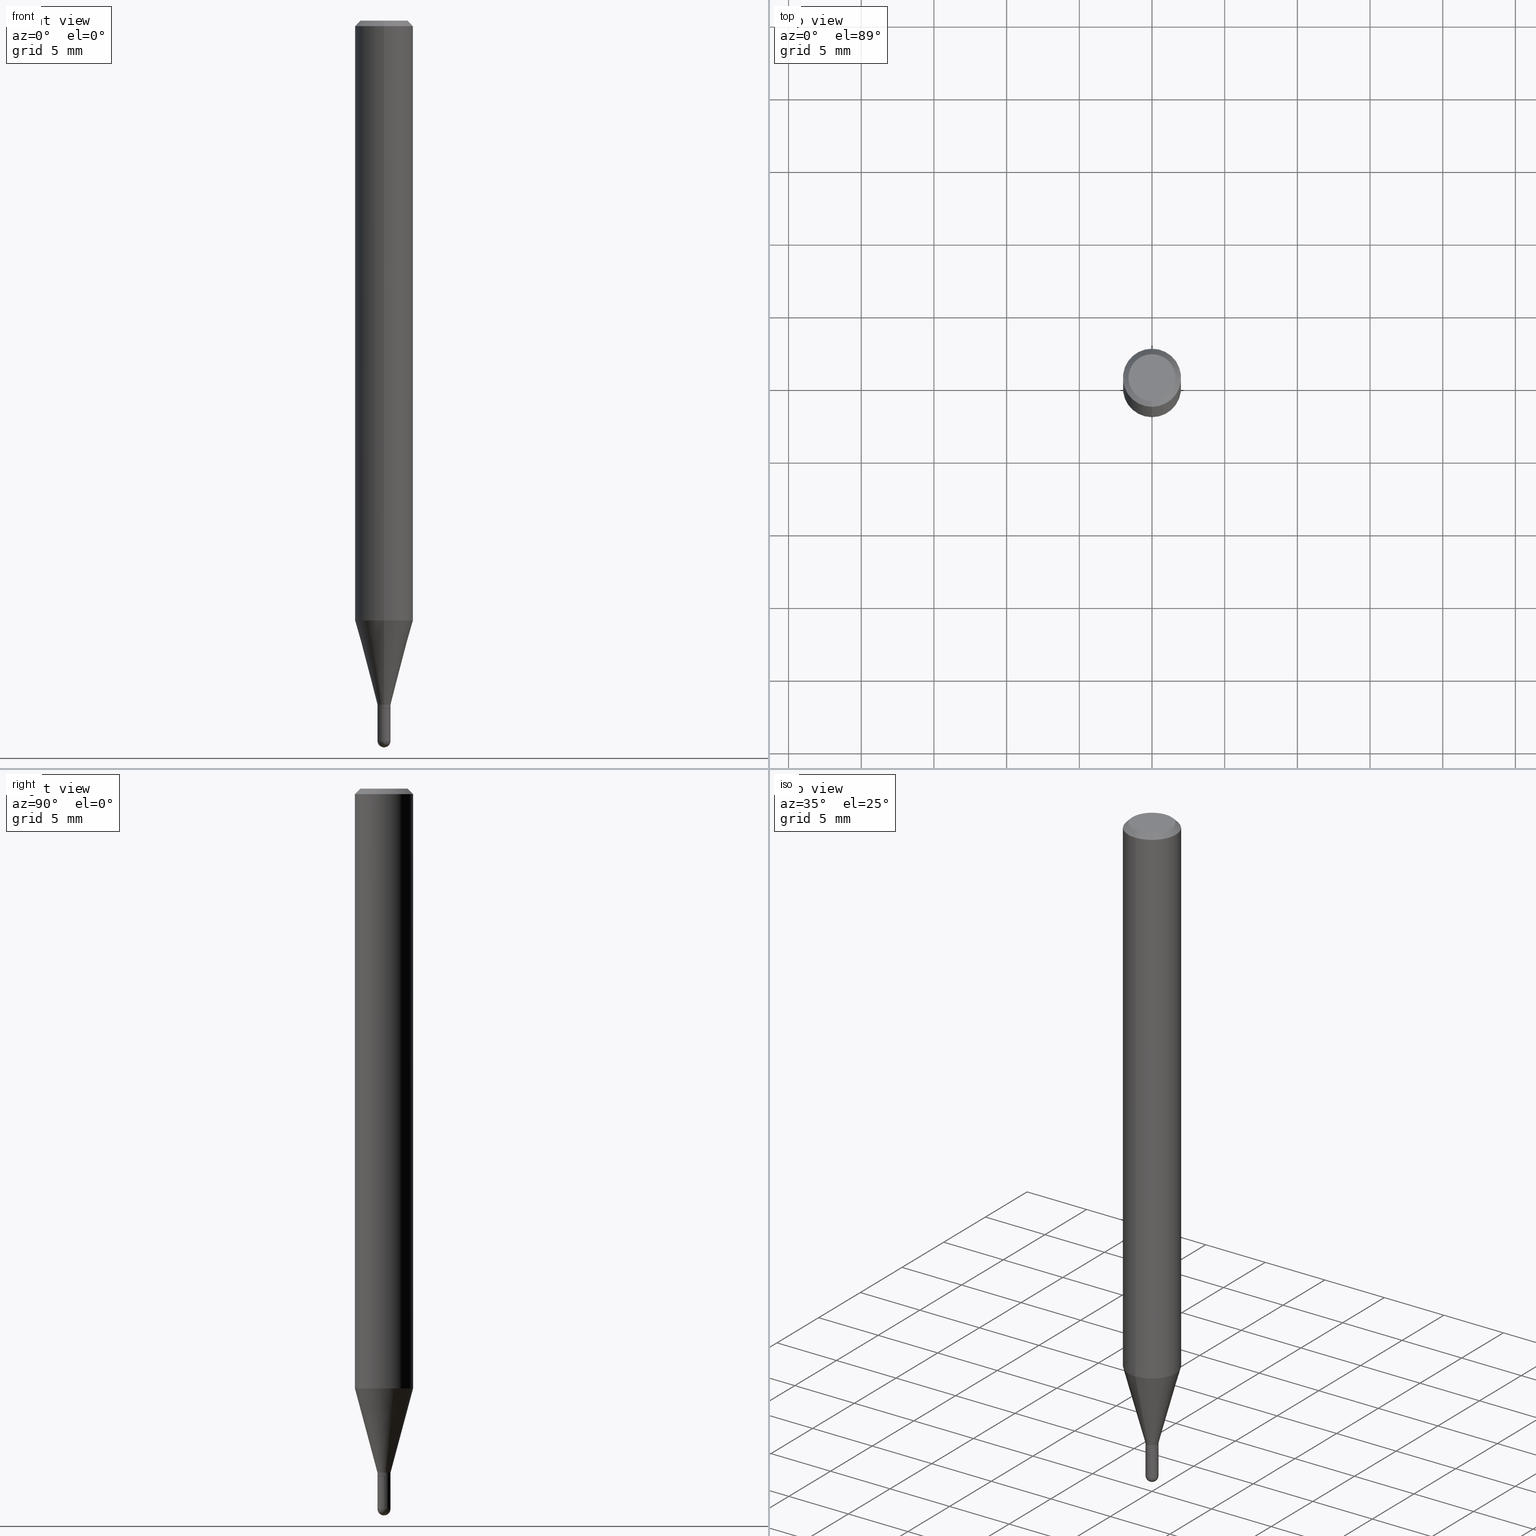
[diagram: canonical four-view strip — front | top / right | iso, engineering-drawing reading convention]
A machine part, canonical four-view strip (front | top / right | iso — engineering-drawing reading convention). The complete STEP part file that produces these views, byte-faithful:
ISO-10303-21;
HEADER;
FILE_DESCRIPTION (( 'STEP AP203' ),
    '1' );
FILE_NAME ('03204.STEP',
    '2024-03-08T18:33:10',
    ( '' ),
    ( '' ),
    'SwSTEP 2.0',
    'SolidWorks 2023',
    '' );
FILE_SCHEMA (( 'CONFIG_CONTROL_DESIGN' ));
ENDSEC;

DATA;
#1 = DIRECTION ( 'NONE',  ( 1.000000000000000000, -6.982962677686271444E-15, 0.000000000000000000 ) ) ;
#2 = DATE_AND_TIME ( #405, #400 ) ;
#3 = CARTESIAN_POINT ( 'NONE',  ( -1.201069580561582522E-16, -0.01720000000000650175, -1.862199999999999855 ) ) ;
#4 = ORIENTED_EDGE ( 'NONE', *, *, #167, .T. ) ;
#5 = PERSON_AND_ORGANIZATION ( #130, #111 ) ;
#6 = CARTESIAN_POINT ( 'NONE',  ( 3.668172955248934329E-31, -5.237265333755907413E-17, -0.01500000000000005322 ) ) ;
#7 = CIRCLE ( 'NONE', #69, 0.01770000000000000046 ) ;
#8 = AXIS2_PLACEMENT_3D ( 'NONE', #61, #210, #176 ) ;
#9 = ORIENTED_EDGE ( 'NONE', *, *, #167, .F. ) ;
#10 = APPLICATION_PROTOCOL_DEFINITION ( 'international standard', 'config_control_design', 1994, #127 ) ;
#11 = ORIENTED_EDGE ( 'NONE', *, *, #249, .F. ) ;
#12 = PERSON_AND_ORGANIZATION_ROLE ( 'design_supplier' ) ;
#13 = EDGE_CURVE ( 'NONE', #72, #334, #298, .T. ) ;
#14 = DIRECTION ( 'NONE',  ( -2.445468806185136597E-29, 3.491481338843145583E-15, 1.000000000000000000 ) ) ;
#15 = ORIENTED_EDGE ( 'NONE', *, *, #269, .F. ) ;
#16 = ADVANCED_FACE ( 'NONE', ( #335 ), #100, .T. ) ;
#17 = CARTESIAN_POINT ( 'NONE',  ( -5.499083108677933457E-16, -0.07875000000000000056, 2.749564300221841855E-16 ) ) ;
#18 = CIRCLE ( 'NONE', #436, 0.07875000000000000056 ) ;
#19 = DIRECTION ( 'NONE',  ( -6.982962677686266711E-15, -1.000000000000000000, 0.000000000000000000 ) ) ;
#20 = CARTESIAN_POINT ( 'NONE',  ( 4.769106902774117401E-29, -6.813349420649699799E-15, -1.950800000000000090 ) ) ;
#21 = DIRECTION ( 'NONE',  ( -6.982962677686265922E-15, -1.000000000000000000, 0.000000000000000000 ) ) ;
#22 = VERTEX_POINT ( 'NONE', #145 ) ;
#23 = APPROVAL_PERSON_ORGANIZATION ( #440, #498, #367 ) ;
#24 = CYLINDRICAL_SURFACE ( 'NONE', #378, 0.01769999999999992760 ) ;
#25 = EDGE_LOOP ( 'NONE', ( #50, #158, #4, #225 ) ) ;
#26 = DIRECTION ( 'NONE',  ( -2.445448636832614035E-29, 3.491510222503925539E-15, 1.000000000000000000 ) ) ;
#27 = DIRECTION ( 'NONE',  ( -6.982962677686266711E-15, -1.000000000000000000, 0.000000000000000000 ) ) ;
#28 = CARTESIAN_POINT ( 'NONE',  ( 4.451638707024994831E-16, 0.06375000000000000111, -2.493046491753331708E-16 ) ) ;
#29 = AXIS2_PLACEMENT_3D ( 'NONE', #427, #398, #187 ) ;
#30 = ADVANCED_FACE ( 'NONE', ( #299 ), #301, .T. ) ;
#31 = CONICAL_SURFACE ( 'NONE', #444, 0.01769999999999965351, 0.2617993877991502960 ) ;
#32 = EDGE_CURVE ( 'NONE', #349, #446, #389, .T. ) ;
#33 = DIRECTION ( 'NONE',  ( 2.445448636832614315E-29, -3.491510222503925933E-15, -1.000000000000000000 ) ) ;
#34 = DIRECTION ( 'NONE',  ( -4.937700262167370586E-15, -0.7071067811869493624, 0.7071067811861454500 ) ) ;
#35 = CARTESIAN_POINT ( 'NONE',  ( -0.01770000000000000046, 1.257660642295377361E-16, -8.706515109751182648E-31 ) ) ;
#36 = DIRECTION ( 'NONE',  ( -6.982962677686265922E-15, -1.000000000000000000, 0.000000000000000000 ) ) ;
#37 = ORIENTED_EDGE ( 'NONE', *, *, #62, .T. ) ;
#38 = FACE_OUTER_BOUND ( 'NONE', #282, .T. ) ;
#39 = DIRECTION ( 'NONE',  ( -2.445468806185136597E-29, 3.491481338843145583E-15, 1.000000000000000000 ) ) ;
#40 = EDGE_LOOP ( 'NONE', ( #393, #120 ) ) ;
#41 = AXIS2_PLACEMENT_3D ( 'NONE', #256, #26, #293 ) ;
#42 = AXIS2_PLACEMENT_3D ( 'NONE', #238, #358, #192 ) ;
#43 = CARTESIAN_POINT ( 'NONE',  ( 4.530193599732417760E-29, -6.468022687188522652E-15, -1.852500000000000036 ) ) ;
#44 = CALENDAR_DATE ( 2024, 8, 3 ) ;
#45 = DIRECTION ( 'NONE',  ( -6.982962677686266711E-15, -1.000000000000000000, 0.000000000000000000 ) ) ;
#46 = VERTEX_POINT ( 'NONE', #401 ) ;
#47 = APPROVAL_DATE_TIME ( #2, #383 ) ;
#48 = LINE ( 'NONE', #209, #496 ) ;
#49 = DIRECTION ( 'NONE',  ( 6.982962677686265922E-15, 1.000000000000000000, 0.000000000000000000 ) ) ;
#50 = ORIENTED_EDGE ( 'NONE', *, *, #244, .F. ) ;
#51 = SECURITY_CLASSIFICATION_LEVEL ( 'unclassified' ) ;
#52 = CARTESIAN_POINT ( 'NONE',  ( 1.239897073901837064E-16, 0.01719999999999349827, -1.862199999999999855 ) ) ;
#53 = EDGE_CURVE ( 'NONE', #72, #279, #148, .T. ) ;
#54 = DIRECTION ( 'NONE',  ( 1.000000000000000000, 0.000000000000000000, 0.000000000000000000 ) ) ;
#55 = DIRECTION ( 'NONE',  ( -6.982962677686266711E-15, -1.000000000000000000, 0.000000000000000000 ) ) ;
#56 = ORIENTED_EDGE ( 'NONE', *, *, #32, .F. ) ;
#57 = VERTEX_POINT ( 'NONE', #344 ) ;
#58 = EDGE_CURVE ( 'NONE', #333, #204, #242, .T. ) ;
#59 = DATE_AND_TIME ( #458, #342 ) ;
#60 = CC_DESIGN_PERSON_AND_ORGANIZATION_ASSIGNMENT ( #5, #12, ( #417 ) ) ;
#61 = CARTESIAN_POINT ( 'NONE',  ( 4.770620547105964061E-29, -6.811181795815208114E-15, -1.950799999999999867 ) ) ;
#62 = EDGE_CURVE ( 'NONE', #22, #156, #451, .T. ) ;
#63 = VECTOR ( 'NONE', #258, 39.37007874015748854 ) ;
#64 = EDGE_CURVE ( 'NONE', #217, #78, #320, .T. ) ;
#65 = ORIENTED_EDGE ( 'NONE', *, *, #135, .F. ) ;
#66 = CARTESIAN_POINT ( 'NONE',  ( -0.01770000000000000046, -6.530743108274918506E-15, -1.862200000000000077 ) ) ;
#67 = DIRECTION ( 'NONE',  ( -2.445448636832614315E-29, 3.491510222503925933E-15, 1.000000000000000000 ) ) ;
#68 = DIRECTION ( 'NONE',  ( -2.445448636832614315E-29, 3.491510222503925933E-15, 1.000000000000000000 ) ) ;
#69 = AXIS2_PLACEMENT_3D ( 'NONE', #195, #190, #318 ) ;
#70 = CONICAL_SURFACE ( 'NONE', #184, 0.07875000000000000056, 0.7853981633974480570 ) ;
#71 = CARTESIAN_POINT ( 'NONE',  ( -0.01770000000000000046, -6.530743108274918506E-15, -1.950799999999999867 ) ) ;
#72 = VERTEX_POINT ( 'NONE', #3 ) ;
#73 = LINE ( 'NONE', #347, #142 ) ;
#74 = ORIENTED_EDGE ( 'NONE', *, *, #382, .T. ) ;
#75 = LINE ( 'NONE', #35, #509 ) ;
#76 = DIRECTION ( 'NONE',  ( -2.445448636832614595E-29, 3.491510222503925539E-15, 1.000000000000000000 ) ) ;
#77 = CARTESIAN_POINT ( 'NONE',  ( 3.668172955248934329E-31, -5.237265333755907413E-17, -0.01500000000000005322 ) ) ;
#78 = VERTEX_POINT ( 'NONE', #431 ) ;
#79 = CLOSED_SHELL ( 'NONE', ( #162, #474, #477, #394, #463, #122, #16, #236, #404, #259, #313, #399 ) ) ;
#80 = AXIS2_PLACEMENT_3D ( 'NONE', #257, #67, #27 ) ;
#81 = CARTESIAN_POINT ( 'NONE',  ( 3.973018420646897209E-29, -5.672511056233867752E-15, -1.624658298197919626 ) ) ;
#82 = COORDINATED_UNIVERSAL_TIME_OFFSET ( 5, 0, .BEHIND. ) ;
#83 = CARTESIAN_POINT ( 'NONE',  ( 4.530193599732417760E-29, -6.468022687188522652E-15, -1.852500000000000036 ) ) ;
#84 = CARTESIAN_POINT ( 'NONE',  ( 3.668172955248934329E-31, -5.237265333755907413E-17, -0.01500000000000005322 ) ) ;
#85 = EDGE_LOOP ( 'NONE', ( #411, #132 ) ) ;
#86 = APPROVAL_DATE_TIME ( #163, #498 ) ;
#87 = DIRECTION ( 'NONE',  ( -2.445448636832614595E-29, 3.491510222503925539E-15, 1.000000000000000000 ) ) ;
#88 = CIRCLE ( 'NONE', #283, 0.01769999999999996229 ) ;
#89 = SPHERICAL_SURFACE ( 'NONE', #96, 0.01769999999999996229 ) ;
#90 = DATE_TIME_ROLE ( 'classification_date' ) ;
#91 = DIRECTION ( 'NONE',  ( -6.982962677686264344E-15, -1.000000000000000000, 3.496114991891765576E-15 ) ) ;
#92 = ORIENTED_EDGE ( 'NONE', *, *, #214, .T. ) ;
#93 = CARTESIAN_POINT ( 'NONE',  ( 0.000000000000000000, 0.000000000000000000, 0.000000000000000000 ) ) ;
#94 = AXIS2_PLACEMENT_3D ( 'NONE', #81, #396, #356 ) ;
#95 = ORIENTED_EDGE ( 'NONE', *, *, #269, .T. ) ;
#96 = AXIS2_PLACEMENT_3D ( 'NONE', #443, #285, #205 ) ;
#97 = ORIENTED_EDGE ( 'NONE', *, *, #144, .F. ) ;
#98 = EDGE_LOOP ( 'NONE', ( #56, #448, #499, #284 ) ) ;
#99 = CARTESIAN_POINT ( 'NONE',  ( 3.426592343203496595E-16, 0.01769999999999318646, -1.852500000000000036 ) ) ;
#100 = CYLINDRICAL_SURFACE ( 'NONE', #261, 0.07875000000000000056 ) ;
#101 = FACE_OUTER_BOUND ( 'NONE', #40, .T. ) ;
#102 = AXIS2_PLACEMENT_3D ( 'NONE', #114, #355, #1 ) ;
#103 = APPROVAL_PERSON_ORGANIZATION ( #194, #383, #121 ) ;
#104 = CARTESIAN_POINT ( 'NONE',  ( 1.257660642295371938E-16, 0.01769999999999992760, -6.179973093831923207E-17 ) ) ;
#105 = ORIENTED_EDGE ( 'NONE', *, *, #13, .T. ) ;
#106 = CC_DESIGN_DATE_AND_TIME_ASSIGNMENT ( #281, #233, ( #487 ) ) ;
#107 = CARTESIAN_POINT ( 'NONE',  ( 1.222133505507827641E-16, 0.01719999999999349827, -1.862199999999999855 ) ) ;
#108 = DIRECTION ( 'NONE',  ( -2.445468806185136597E-29, 3.491481338843145583E-15, 1.000000000000000000 ) ) ;
#109 = FACE_OUTER_BOUND ( 'NONE', #406, .T. ) ;
#110 = ORIENTED_EDGE ( 'NONE', *, *, #246, .F. ) ;
#111 = ORGANIZATION ( 'UNSPECIFIED', 'UNSPECIFIED', '' ) ;
#112 = DIRECTION ( 'NONE',  ( 1.000000000000000000, -6.982962677686265922E-15, 4.876176775795935232E-29 ) ) ;
#113 = ADVANCED_FACE ( 'NONE', ( #392 ), #151, .F. ) ;
#114 = CARTESIAN_POINT ( 'NONE',  ( 4.770620547105964061E-29, -6.811181795815208114E-15, -1.950799999999999867 ) ) ;
#115 = LENGTH_MEASURE_WITH_UNIT ( LENGTH_MEASURE( 0.02539999999999999897 ), #402 );
#116 = DIRECTION ( 'NONE',  ( -2.445448636832614315E-29, 3.491510222503925933E-15, 1.000000000000000000 ) ) ;
#117 = CIRCLE ( 'NONE', #472, 0.01769999999999965351 ) ;
#118 = CC_DESIGN_SECURITY_CLASSIFICATION ( #300, ( #417 ) ) ;
#119 = CARTESIAN_POINT ( 'NONE',  ( 4.552691727191278225E-29, -6.500144581235559619E-15, -1.861700000000000355 ) ) ;
#120 = ORIENTED_EDGE ( 'NONE', *, *, #280, .F. ) ;
#121 = APPROVAL_ROLE ( '' ) ;
#122 = ADVANCED_FACE ( 'NONE', ( #475 ), #134, .T. ) ;
#123 = DIRECTION ( 'NONE',  ( -2.445448636832614315E-29, 3.491510222503925933E-15, 1.000000000000000000 ) ) ;
#124 = EDGE_LOOP ( 'NONE', ( #161, #412, #276, #497, #203 ) ) ;
#125 = DATE_AND_TIME ( #326, #503 ) ;
#126 = CIRCLE ( 'NONE', #102, 0.01770000000000000046 ) ;
#127 = APPLICATION_CONTEXT ( 'configuration controlled 3d designs of mechanical parts and assemblies' ) ;
#128 = LOCAL_TIME ( 13, 33, 10.00000000000000000, #325 ) ;
#129 = DIRECTION ( 'NONE',  ( -2.445448636832614595E-29, 3.491510222503925539E-15, 1.000000000000000000 ) ) ;
#130 = PERSON ( 'UNSPECIFIED', 'UNSPECIFIED', 'UNSPECIFIED', ('UNSPECIFIED'), ('UNSPECIFIED'), ('UNSPECIFIED') ) ;
#131 = CYLINDRICAL_SURFACE ( 'NONE', #327, 0.07875000000000000056 ) ;
#132 = ORIENTED_EDGE ( 'NONE', *, *, #64, .T. ) ;
#133 = ORIENTED_EDGE ( 'NONE', *, *, #255, .T. ) ;
#134 = CONICAL_SURFACE ( 'NONE', #461, 0.01769999999999965351, 0.2617993877991502960 ) ;
#135 = EDGE_CURVE ( 'NONE', #421, #181, #407, .T. ) ;
#136 = ORIENTED_EDGE ( 'NONE', *, *, #244, .T. ) ;
#137 = CARTESIAN_POINT ( 'NONE',  ( -5.499083108677930499E-16, -0.07875000000000004219, -0.01499999999999977740 ) ) ;
#138 = CC_DESIGN_PERSON_AND_ORGANIZATION_ASSIGNMENT ( #481, #322, ( #175 ) ) ;
#139 = PLANE ( 'NONE',  #154 ) ;
#140 = DIRECTION ( 'NONE',  ( -2.445448636832614315E-29, 3.491510222503925933E-15, 1.000000000000000000 ) ) ;
#141 = CARTESIAN_POINT ( 'NONE',  ( 4.553914451509694013E-29, -6.501890336346809965E-15, -1.862199999999999855 ) ) ;
#142 = VECTOR ( 'NONE', #510, 39.37007874015748143 ) ;
#143 = CC_DESIGN_APPROVAL ( #498, ( #487 ) ) ;
#144 = EDGE_CURVE ( 'NONE', #57, #432, #117, .T. ) ;
#145 = CARTESIAN_POINT ( 'NONE',  ( -5.499083108677538040E-16, -0.07875000000000566269, -1.624658298197919404 ) ) ;
#146 = EDGE_CURVE ( 'NONE', #279, #46, #351, .T. ) ;
#147 = ADVANCED_FACE ( 'NONE', ( #219 ), #434, .T. ) ;
#148 = LINE ( 'NONE', #315, #360 ) ;
#149 = PRODUCT_RELATED_PRODUCT_CATEGORY ( 'detail', '', ( #175 ) ) ;
#150 = FACE_OUTER_BOUND ( 'NONE', #419, .T. ) ;
#151 = PLANE ( 'NONE',  #171 ) ;
#152 = VERTEX_POINT ( 'NONE', #71 ) ;
#153 = CIRCLE ( 'NONE', #425, 0.01769999999999965351 ) ;
#154 = AXIS2_PLACEMENT_3D ( 'NONE', #28, #449, #453 ) ;
#155 = LINE ( 'NONE', #473, #340 ) ;
#156 = VERTEX_POINT ( 'NONE', #160 ) ;
#157 = CARTESIAN_POINT ( 'NONE',  ( 4.769106902774117401E-29, -6.813349420649699799E-15, -1.950800000000000090 ) ) ;
#158 = ORIENTED_EDGE ( 'NONE', *, *, #506, .F. ) ;
#159 = PERSON_AND_ORGANIZATION_ROLE ( 'creator' ) ;
#160 = CARTESIAN_POINT ( 'NONE',  ( 5.595524044111181461E-16, 0.07874999999999431066, -1.624658298197919848 ) ) ;
#161 = ORIENTED_EDGE ( 'NONE', *, *, #500, .F. ) ;
#162 = ADVANCED_FACE ( 'NONE', ( #109 ), #429, .T. ) ;
#163 = DATE_AND_TIME ( #229, #213 ) ;
#164 = VECTOR ( 'NONE', #76, 39.37007874015748143 ) ;
#165 = CARTESIAN_POINT ( 'NONE',  ( -4.888104823412213911E-16, -0.06375000000000000111, 1.691420317032095164E-16 ) ) ;
#166 = SPHERICAL_SURFACE ( 'NONE', #191, 0.01769999999999996229 ) ;
#167 = EDGE_CURVE ( 'NONE', #78, #181, #73, .T. ) ;
#168 = PERSON_AND_ORGANIZATION_ROLE ( 'classification_officer' ) ;
#169 = FACE_OUTER_BOUND ( 'NONE', #98, .T. ) ;
#170 = ORIENTED_EDGE ( 'NONE', *, *, #144, .T. ) ;
#171 = AXIS2_PLACEMENT_3D ( 'NONE', #504, #302, #306 ) ;
#172 = CC_DESIGN_APPROVAL ( #383, ( #417 ) ) ;
#173 = LINE ( 'NONE', #410, #390 ) ;
#174 = APPROVAL_ROLE ( '' ) ;
#175 = PRODUCT ( '03204', '03204', '', ( #277 ) ) ;
#176 = DIRECTION ( 'NONE',  ( 1.000000000000000000, -6.982962677686271444E-15, 0.000000000000000000 ) ) ;
#177 = AXIS2_PLACEMENT_3D ( 'NONE', #354, #433, #54 ) ;
#178 = EDGE_LOOP ( 'NONE', ( #15, #338, #454, #308 ) ) ;
#179 = CC_DESIGN_PERSON_AND_ORGANIZATION_ASSIGNMENT ( #363, #168, ( #300 ) ) ;
#180 = CARTESIAN_POINT ( 'NONE',  ( -1.257660642294898621E-16, -0.01770000000000679016, -1.950799999999999867 ) ) ;
#181 = VERTEX_POINT ( 'NONE', #424 ) ;
#182 = FACE_OUTER_BOUND ( 'NONE', #441, .T. ) ;
#183 = DIRECTION ( 'NONE',  ( -2.445468806185136877E-29, 3.491481338843145188E-15, 1.000000000000000000 ) ) ;
#184 = AXIS2_PLACEMENT_3D ( 'NONE', #388, #33, #304 ) ;
#185 = DIRECTION ( 'NONE',  ( -6.982962677686264344E-15, -1.000000000000000000, 3.496114991891765576E-15 ) ) ;
#186 = EDGE_CURVE ( 'NONE', #381, #311, #7, .T. ) ;
#187 = DIRECTION ( 'NONE',  ( -6.982962677686265922E-15, -1.000000000000000000, 3.491510222503925539E-15 ) ) ;
#188 = ORIENTED_EDGE ( 'NONE', *, *, #146, .T. ) ;
#189 = DIRECTION ( 'NONE',  ( -2.445468806185136877E-29, 3.491481338843145188E-15, 1.000000000000000000 ) ) ;
#190 = DIRECTION ( 'NONE',  ( -2.445468806185136597E-29, 3.491481338843145583E-15, 1.000000000000000000 ) ) ;
#191 = AXIS2_PLACEMENT_3D ( 'NONE', #275, #408, #49 ) ;
#192 = DIRECTION ( 'NONE',  ( -6.982962677686265922E-15, -1.000000000000000000, 3.491510222503926328E-15 ) ) ;
#193 = DIRECTION ( 'NONE',  ( -6.982962677686265922E-15, -1.000000000000000000, 3.491510222503926328E-15 ) ) ;
#194 = PERSON_AND_ORGANIZATION ( #130, #111 ) ;
#195 = CARTESIAN_POINT ( 'NONE',  ( 4.553952010877962015E-29, -6.501836549193706638E-15, -1.862200000000000077 ) ) ;
#196 = PERSON_AND_ORGANIZATION ( #130, #111 ) ;
#197 = DIRECTION ( 'NONE',  ( 6.982962677686264344E-15, 1.000000000000000000, -3.496114991891765576E-15 ) ) ;
#198 = DIRECTION ( 'NONE',  ( 1.000000000000000000, -6.982962677686265922E-15, 4.883557194083112340E-29 ) ) ;
#199 = CLOSED_SHELL ( 'NONE', ( #30, #343, #113, #370, #147 ) ) ;
#200 = CONICAL_SURFACE ( 'NONE', #271, 0.07875000000000000056, 0.7853981633974480570 ) ;
#201 = APPLICATION_PROTOCOL_DEFINITION ( 'international standard', 'config_control_design', 1994, #312 ) ;
#202 = AXIS2_PLACEMENT_3D ( 'NONE', #422, #248, #216 ) ;
#203 = ORIENTED_EDGE ( 'NONE', *, *, #409, .F. ) ;
#204 = VERTEX_POINT ( 'NONE', #507 ) ;
#205 = DIRECTION ( 'NONE',  ( 6.982962677686265922E-15, 1.000000000000000000, 0.000000000000000000 ) ) ;
#206 = EDGE_CURVE ( 'NONE', #156, #181, #155, .T. ) ;
#207 = CIRCLE ( 'NONE', #372, 0.07875000000000000056 ) ;
#208 = ORIENTED_EDGE ( 'NONE', *, *, #348, .F. ) ;
#209 = CARTESIAN_POINT ( 'NONE',  ( 0.01770000000000000046, -1.235984393950469147E-16, 8.630832893158805849E-31 ) ) ;
#210 = DIRECTION ( 'NONE',  ( -2.445468806185136597E-29, 3.491481338843145583E-15, 1.000000000000000000 ) ) ;
#211 = CARTESIAN_POINT ( 'NONE',  ( -1.235984393950031822E-16, -0.01770000000000675547, -1.861700000000000355 ) ) ;
#212 = CIRCLE ( 'NONE', #416, 0.01770000000000019821 ) ;
#213 = LOCAL_TIME ( 13, 33, 10.00000000000000000, #82 ) ;
#214 = EDGE_CURVE ( 'NONE', #204, #152, #126, .T. ) ;
#215 = CARTESIAN_POINT ( 'NONE',  ( 4.553914451509694013E-29, -6.501890336346809965E-15, -1.862199999999999855 ) ) ;
#216 = DIRECTION ( 'NONE',  ( -6.982962677686266711E-15, -1.000000000000000000, 0.000000000000000000 ) ) ;
#217 = VERTEX_POINT ( 'NONE', #165 ) ;
#218 = ORIENTED_EDGE ( 'NONE', *, *, #447, .T. ) ;
#219 = FACE_OUTER_BOUND ( 'NONE', #124, .T. ) ;
#220 = AXIS2_PLACEMENT_3D ( 'NONE', #260, #391, #470 ) ;
#221 = VECTOR ( 'NONE', #129, 39.37007874015748143 ) ;
#222 = DIRECTION ( 'NONE',  ( 1.000000000000000000, -6.982962677686271444E-15, 0.000000000000000000 ) ) ;
#223 = EDGE_LOOP ( 'NONE', ( #292, #428 ) ) ;
#224 = DIRECTION ( 'NONE',  ( -2.445448636832614595E-29, 3.491510222503925539E-15, 1.000000000000000000 ) ) ;
#225 = ORIENTED_EDGE ( 'NONE', *, *, #366, .T. ) ;
#226 = LINE ( 'NONE', #107, #63 ) ;
#227 = DIRECTION ( 'NONE',  ( -1.000000000000000000, 7.105427357601001070E-15, -4.926315508542082329E-29 ) ) ;
#228 = CIRCLE ( 'NONE', #8, 0.01770000000000000046 ) ;
#229 = CALENDAR_DATE ( 2024, 8, 3 ) ;
#230 = CARTESIAN_POINT ( 'NONE',  ( 1.306890424147594012E-45, -1.865923989110610669E-31, -5.344174498141577372E-17 ) ) ;
#231 = DIRECTION ( 'NONE',  ( -2.445448636832614315E-29, 3.491510222503925933E-15, 1.000000000000000000 ) ) ;
#232 = CARTESIAN_POINT ( 'NONE',  ( 0.01770000000000000046, -6.780107611899503773E-15, -1.950799999999999867 ) ) ;
#233 = DATE_TIME_ROLE ( 'creation_date' ) ;
#234 = ORIENTED_EDGE ( 'NONE', *, *, #135, .T. ) ;
#235 = AXIS2_PLACEMENT_3D ( 'NONE', #230, #482, #193 ) ;
#236 = ADVANCED_FACE ( 'NONE', ( #437 ), #200, .T. ) ;
#237 = UNCERTAINTY_MEASURE_WITH_UNIT (LENGTH_MEASURE( 1.000000000000000082E-05 ), #267, 'distance_accuracy_value', 'NONE');
#238 = CARTESIAN_POINT ( 'NONE',  ( 1.306890424147594012E-45, -1.865923989110610669E-31, -5.344174498141577372E-17 ) ) ;
#239 = DIRECTION ( 'NONE',  ( -2.445448636832614315E-29, 3.491510222503925933E-15, 1.000000000000000000 ) ) ;
#240 = CC_DESIGN_DATE_AND_TIME_ASSIGNMENT ( #125, #90, ( #300 ) ) ;
#241 = SHAPE_DEFINITION_REPRESENTATION ( #345, #490 ) ;
#242 = CIRCLE ( 'NONE', #251, 0.01770000000000000046 ) ;
#243 = AXIS2_PLACEMENT_3D ( 'NONE', #369, #14, #489 ) ;
#244 = EDGE_CURVE ( 'NONE', #217, #421, #323, .T. ) ;
#245 = DIRECTION ( 'NONE',  ( -2.445468806185136597E-29, 3.491481338843145583E-15, 1.000000000000000000 ) ) ;
#246 = EDGE_CURVE ( 'NONE', #432, #57, #153, .T. ) ;
#247 = ORIENTED_EDGE ( 'NONE', *, *, #450, .F. ) ;
#248 = DIRECTION ( 'NONE',  ( -2.445448636832614315E-29, 3.491510222503925933E-15, 1.000000000000000000 ) ) ;
#249 = EDGE_CURVE ( 'NONE', #333, #381, #48, .T. ) ;
#250 = APPROVAL_DATE_TIME ( #59, #286 ) ;
#251 = AXIS2_PLACEMENT_3D ( 'NONE', #479, #39, #222 ) ;
#252 = CIRCLE ( 'NONE', #202, 0.01720000000000000001 ) ;
#253 = CARTESIAN_POINT ( 'NONE',  ( 4.552691727191278225E-29, -6.500144581235559619E-15, -1.861700000000000355 ) ) ;
#254 = CARTESIAN_POINT ( 'NONE',  ( -1.235984393949991886E-16, -0.01770000000000612403, -1.852500000000000036 ) ) ;
#255 = EDGE_CURVE ( 'NONE', #46, #279, #212, .T. ) ;
#256 = CARTESIAN_POINT ( 'NONE',  ( 4.553914451509694573E-29, -6.501890336346811543E-15, -1.862200000000000077 ) ) ;
#257 = CARTESIAN_POINT ( 'NONE',  ( 4.553914451509694013E-29, -6.501890336346809965E-15, -1.862199999999999855 ) ) ;
#258 = DIRECTION ( 'NONE',  ( 5.024295867790934632E-15, 0.7071067811869542474, 0.7071067811861405650 ) ) ;
#259 = ADVANCED_FACE ( 'NONE', ( #101 ), #502, .F. ) ;
#260 = CARTESIAN_POINT ( 'NONE',  ( 0.000000000000000000, 0.000000000000000000, 0.000000000000000000 ) ) ;
#261 = AXIS2_PLACEMENT_3D ( 'NONE', #418, #140, #341 ) ;
#262 = CONICAL_SURFACE ( 'NONE', #80, 0.01720000000000000001, 0.7853981633980202659 ) ;
#263 = DIRECTION ( 'NONE',  ( -6.982962677686264344E-15, -1.000000000000000000, 3.469013325287953293E-15 ) ) ;
#264 = DIRECTION ( 'NONE',  ( -7.105427357601000281E-15, -1.000000000000000000, 0.000000000000000000 ) ) ;
#265 = ORIENTED_EDGE ( 'NONE', *, *, #450, .T. ) ;
#266 = CARTESIAN_POINT ( 'NONE',  ( 4.530193599732417760E-29, -6.468022687188522652E-15, -1.852500000000000036 ) ) ;
#267 =( CONVERSION_BASED_UNIT ( 'INCH', #115 ) LENGTH_UNIT ( ) NAMED_UNIT ( #491 ) );
#268 = DIRECTION ( 'NONE',  ( -2.445448636832614315E-29, 3.491510222503925933E-15, 1.000000000000000000 ) ) ;
#269 = EDGE_CURVE ( 'NONE', #432, #156, #295, .T. ) ;
#270 = EDGE_LOOP ( 'NONE', ( #37, #357, #65, #480 ) ) ;
#271 = AXIS2_PLACEMENT_3D ( 'NONE', #6, #486, #197 ) ;
#272 = APPROVAL_PERSON_ORGANIZATION ( #368, #286, #174 ) ;
#273 = APPROVAL_STATUS ( 'not_yet_approved' ) ;
#274 = CARTESIAN_POINT ( 'NONE',  ( -5.402642173245076924E-16, -0.07875000000000004219, -0.01499999999999977740 ) ) ;
#275 = CARTESIAN_POINT ( 'NONE',  ( 4.769106902774117401E-29, -6.813349420649699799E-15, -1.950800000000000090 ) ) ;
#276 = ORIENTED_EDGE ( 'NONE', *, *, #420, .T. ) ;
#277 = MECHANICAL_CONTEXT ( 'NONE', #127, 'mechanical' ) ;
#278 = CARTESIAN_POINT ( 'NONE',  ( 0.01770000000000000046, -6.625434988588753035E-15, -1.862200000000000077 ) ) ;
#279 = VERTEX_POINT ( 'NONE', #211 ) ;
#280 = EDGE_CURVE ( 'NONE', #334, #72, #252, .T. ) ;
#281 = DATE_AND_TIME ( #44, #128 ) ;
#282 = EDGE_LOOP ( 'NONE', ( #105, #265, #365, #294 ) ) ;
#283 = AXIS2_PLACEMENT_3D ( 'NONE', #20, #198, #364 ) ;
#284 = ORIENTED_EDGE ( 'NONE', *, *, #420, .F. ) ;
#285 = DIRECTION ( 'NONE',  ( -1.000000000000000000, 6.982962677686265922E-15, -4.883557194083112901E-29 ) ) ;
#286 = APPROVAL ( #374, 'UNSPECIFIED' ) ;
#287 = DIRECTION ( 'NONE',  ( -2.445448636832614315E-29, 3.491510222503925933E-15, 1.000000000000000000 ) ) ;
#288 = ORIENTED_EDGE ( 'NONE', *, *, #32, .T. ) ;
#289 = AXIS2_PLACEMENT_3D ( 'NONE', #215, #415, #386 ) ;
#290 = CIRCLE ( 'NONE', #462, 0.01770000000000000046 ) ;
#291 = LINE ( 'NONE', #254, #452 ) ;
#292 = ORIENTED_EDGE ( 'NONE', *, *, #186, .T. ) ;
#293 = DIRECTION ( 'NONE',  ( -6.982962677686265922E-15, -1.000000000000000000, 3.491510222503925539E-15 ) ) ;
#294 = ORIENTED_EDGE ( 'NONE', *, *, #53, .F. ) ;
#295 = LINE ( 'NONE', #495, #493 ) ;
#296 = ORIENTED_EDGE ( 'NONE', *, *, #62, .F. ) ;
#297 = CARTESIAN_POINT ( 'NONE',  ( 4.553952010877962015E-29, -6.501836549193706638E-15, -1.862200000000000077 ) ) ;
#298 = CIRCLE ( 'NONE', #289, 0.01720000000000000001 ) ;
#299 = FACE_OUTER_BOUND ( 'NONE', #457, .T. ) ;
#300 = SECURITY_CLASSIFICATION ( '', '', #51 ) ;
#301 = CYLINDRICAL_SURFACE ( 'NONE', #492, 0.01770000000000000046 ) ;
#302 = DIRECTION ( 'NONE',  ( 2.438088387897960049E-29, -3.491481338843145188E-15, -1.000000000000000000 ) ) ;
#303 = ORIENTED_EDGE ( 'NONE', *, *, #500, .T. ) ;
#304 = DIRECTION ( 'NONE',  ( 6.982962677686264344E-15, 1.000000000000000000, -3.496114991891765576E-15 ) ) ;
#305 = CARTESIAN_POINT ( 'NONE',  ( 4.530193599732417760E-29, -6.468022687188522652E-15, -1.852500000000000036 ) ) ;
#306 = DIRECTION ( 'NONE',  ( -1.000000000000000000, 6.982962677686265922E-15, -4.876176775795935793E-29 ) ) ;
#307 = AXIS2_PLACEMENT_3D ( 'NONE', #77, #68, #185 ) ;
#308 = ORIENTED_EDGE ( 'NONE', *, *, #471, .F. ) ;
#309 = AXIS2_PLACEMENT_3D ( 'NONE', #141, #387, #55 ) ;
#310 = DIRECTION ( 'NONE',  ( -2.445448636832614315E-29, 3.491510222503925933E-15, 1.000000000000000000 ) ) ;
#311 = VERTEX_POINT ( 'NONE', #66 ) ;
#312 = APPLICATION_CONTEXT ( 'configuration controlled 3d designs of mechanical parts and assemblies' ) ;
#313 = ADVANCED_FACE ( 'NONE', ( #339 ), #321, .T. ) ;
#314 = COORDINATED_UNIVERSAL_TIME_OFFSET ( 5, 0, .BEHIND. ) ;
#315 = CARTESIAN_POINT ( 'NONE',  ( -1.201069580561582522E-16, -0.01720000000000650175, -1.862199999999999855 ) ) ;
#316 = ORIENTED_EDGE ( 'NONE', *, *, #379, .T. ) ;
#317 =( NAMED_UNIT ( * ) SI_UNIT ( $, .STERADIAN. ) SOLID_ANGLE_UNIT ( ) );
#318 = DIRECTION ( 'NONE',  ( 1.000000000000000000, -6.982962677686271444E-15, 0.000000000000000000 ) ) ;
#319 = ORIENTED_EDGE ( 'NONE', *, *, #214, .F. ) ;
#320 = CIRCLE ( 'NONE', #235, 0.06375000000000000111 ) ;
#321 = CONICAL_SURFACE ( 'NONE', #309, 0.01720000000000000001, 0.7853981633980202659 ) ;
#322 = PERSON_AND_ORGANIZATION_ROLE ( 'design_owner' ) ;
#323 = LINE ( 'NONE', #274, #377 ) ;
#324 = LINE ( 'NONE', #17, #221 ) ;
#325 = COORDINATED_UNIVERSAL_TIME_OFFSET ( 5, 0, .BEHIND. ) ;
#326 = CALENDAR_DATE ( 2024, 8, 3 ) ;
#327 = AXIS2_PLACEMENT_3D ( 'NONE', #93, #239, #438 ) ;
#328 = FACE_OUTER_BOUND ( 'NONE', #270, .T. ) ;
#329 = DESIGN_CONTEXT ( 'detailed design', #312, 'design' ) ;
#330 = ORIENTED_EDGE ( 'NONE', *, *, #467, .F. ) ;
#331 = DIRECTION ( 'NONE',  ( -2.445448636832614315E-29, 3.491510222503925933E-15, 1.000000000000000000 ) ) ;
#332 = DIRECTION ( 'NONE',  ( -6.982962677686265922E-15, -1.000000000000000000, 3.491510222503925539E-15 ) ) ;
#333 = VERTEX_POINT ( 'NONE', #232 ) ;
#334 = VERTEX_POINT ( 'NONE', #52 ) ;
#335 = FACE_OUTER_BOUND ( 'NONE', #380, .T. ) ;
#336 = ORIENTED_EDGE ( 'NONE', *, *, #186, .F. ) ;
#337 = MANIFOLD_SOLID_BREP ( 'Body-Move/Copy2[1]', #199 ) ;
#338 = ORIENTED_EDGE ( 'NONE', *, *, #246, .T. ) ;
#339 = FACE_OUTER_BOUND ( 'NONE', #484, .T. ) ;
#340 = VECTOR ( 'NONE', #224, 39.37007874015748143 ) ;
#341 = DIRECTION ( 'NONE',  ( -6.982962677686264344E-15, -1.000000000000000000, 3.491510222503926328E-15 ) ) ;
#342 = LOCAL_TIME ( 13, 33, 10.00000000000000000, #376 ) ;
#343 = ADVANCED_FACE ( 'NONE', ( #373 ), #89, .T. ) ;
#344 = CARTESIAN_POINT ( 'NONE',  ( -1.235984393949991886E-16, -0.01770000000000612403, -1.852500000000000036 ) ) ;
#345 = PRODUCT_DEFINITION_SHAPE ( 'NONE', 'NONE',  #487 ) ;
#346 = ORIENTED_EDGE ( 'NONE', *, *, #447, .F. ) ;
#347 = CARTESIAN_POINT ( 'NONE',  ( 5.499083108677937401E-16, 0.07874999999999994504, -0.01500000000000032904 ) ) ;
#348 = EDGE_CURVE ( 'NONE', #349, #204, #88, .T. ) ;
#349 = VERTEX_POINT ( 'NONE', #483 ) ;
#350 = DIRECTION ( 'NONE',  ( -6.982962677686266711E-15, -1.000000000000000000, 0.000000000000000000 ) ) ;
#351 = CIRCLE ( 'NONE', #371, 0.01770000000000019821 ) ;
#352 = ORIENTED_EDGE ( 'NONE', *, *, #471, .T. ) ;
#353 =( GEOMETRIC_REPRESENTATION_CONTEXT ( 3 ) GLOBAL_UNCERTAINTY_ASSIGNED_CONTEXT ( ( #237 ) ) GLOBAL_UNIT_ASSIGNED_CONTEXT ( ( #267, #488, #317 ) ) REPRESENTATION_CONTEXT ( 'NONE', 'WORKASPACE' ) );
#354 = CARTESIAN_POINT ( 'NONE',  ( 0.000000000000000000, 0.000000000000000000, 0.000000000000000000 ) ) ;
#355 = DIRECTION ( 'NONE',  ( -2.445468806185136597E-29, 3.491481338843145583E-15, 1.000000000000000000 ) ) ;
#356 = DIRECTION ( 'NONE',  ( -6.982962677686264344E-15, -1.000000000000000000, 3.469013325287953293E-15 ) ) ;
#357 = ORIENTED_EDGE ( 'NONE', *, *, #206, .T. ) ;
#358 = DIRECTION ( 'NONE',  ( -2.445448636832614315E-29, 3.491510222503925933E-15, 1.000000000000000000 ) ) ;
#359 = DIRECTION ( 'NONE',  ( -4.851104656540962697E-15, -0.7071067811865497932, -0.7071067811865452413 ) ) ;
#360 = VECTOR ( 'NONE', #34, 39.37007874015748854 ) ;
#361 = CIRCLE ( 'NONE', #42, 0.06375000000000000111 ) ;
#362 = EDGE_CURVE ( 'NONE', #152, #446, #426, .T. ) ;
#363 = PERSON_AND_ORGANIZATION ( #130, #111 ) ;
#364 = DIRECTION ( 'NONE',  ( 6.982962677686265922E-15, 1.000000000000000000, 0.000000000000000000 ) ) ;
#365 = ORIENTED_EDGE ( 'NONE', *, *, #146, .F. ) ;
#366 = EDGE_CURVE ( 'NONE', #181, #421, #18, .T. ) ;
#367 = APPROVAL_ROLE ( '' ) ;
#368 = PERSON_AND_ORGANIZATION ( #130, #111 ) ;
#369 = CARTESIAN_POINT ( 'NONE',  ( 4.770620547105964061E-29, -6.811181795815208114E-15, -1.950799999999999867 ) ) ;
#370 = ADVANCED_FACE ( 'NONE', ( #169 ), #166, .T. ) ;
#371 = AXIS2_PLACEMENT_3D ( 'NONE', #119, #268, #36 ) ;
#372 = AXIS2_PLACEMENT_3D ( 'NONE', #423, #384, #263 ) ;
#373 = FACE_OUTER_BOUND ( 'NONE', #430, .T. ) ;
#374 = APPROVAL_STATUS ( 'not_yet_approved' ) ;
#375 = ORIENTED_EDGE ( 'NONE', *, *, #366, .F. ) ;
#376 = COORDINATED_UNIVERSAL_TIME_OFFSET ( 5, 0, .BEHIND. ) ;
#377 = VECTOR ( 'NONE', #359, 39.37007874015748143 ) ;
#378 = AXIS2_PLACEMENT_3D ( 'NONE', #385, #287, #332 ) ;
#379 = EDGE_CURVE ( 'NONE', #22, #421, #324, .T. ) ;
#380 = EDGE_LOOP ( 'NONE', ( #512, #352, #316, #375 ) ) ;
#381 = VERTEX_POINT ( 'NONE', #278 ) ;
#382 = EDGE_CURVE ( 'NONE', #279, #57, #173, .T. ) ;
#383 = APPROVAL ( #273, 'UNSPECIFIED' ) ;
#384 = DIRECTION ( 'NONE',  ( -2.445448636832614315E-29, 3.491510222503925933E-15, 1.000000000000000000 ) ) ;
#385 = CARTESIAN_POINT ( 'NONE',  ( 0.000000000000000000, 0.000000000000000000, 0.000000000000000000 ) ) ;
#386 = DIRECTION ( 'NONE',  ( -6.982962677686266711E-15, -1.000000000000000000, 0.000000000000000000 ) ) ;
#387 = DIRECTION ( 'NONE',  ( -2.445448636832614315E-29, 3.491510222503925933E-15, 1.000000000000000000 ) ) ;
#388 = CARTESIAN_POINT ( 'NONE',  ( 3.668172955248934329E-31, -5.237265333755907413E-17, -0.01500000000000005322 ) ) ;
#389 = CIRCLE ( 'NONE', #508, 0.01769999999999996229 ) ;
#390 = VECTOR ( 'NONE', #87, 39.37007874015748143 ) ;
#391 = DIRECTION ( 'NONE',  ( -2.445468806185136597E-29, 3.491481338843145583E-15, 1.000000000000000000 ) ) ;
#392 = FACE_OUTER_BOUND ( 'NONE', #223, .T. ) ;
#393 = ORIENTED_EDGE ( 'NONE', *, *, #13, .F. ) ;
#394 = ADVANCED_FACE ( 'NONE', ( #328 ), #131, .T. ) ;
#395 = DIRECTION ( 'NONE',  ( -1.807323732225330928E-15, -0.2588190451025182970, 0.9659258262890689783 ) ) ;
#396 = DIRECTION ( 'NONE',  ( -2.445448636832614315E-29, 3.491510222503925933E-15, 1.000000000000000000 ) ) ;
#397 = ORIENTED_EDGE ( 'NONE', *, *, #58, .T. ) ;
#398 = DIRECTION ( 'NONE',  ( -2.445448636832614315E-29, 3.491510222503925933E-15, 1.000000000000000000 ) ) ;
#399 = ADVANCED_FACE ( 'NONE', ( #456 ), #24, .T. ) ;
#400 = LOCAL_TIME ( 13, 33, 10.00000000000000000, #314 ) ;
#401 = CARTESIAN_POINT ( 'NONE',  ( 1.257660642295842296E-16, 0.01769999999999364096, -1.861700000000000355 ) ) ;
#402 =( LENGTH_UNIT ( ) NAMED_UNIT ( * ) SI_UNIT ( $, .METRE. ) );
#403 = DIRECTION ( 'NONE',  ( -6.982962677686266711E-15, -1.000000000000000000, 0.000000000000000000 ) ) ;
#404 = ADVANCED_FACE ( 'NONE', ( #501 ), #139, .F. ) ;
#405 = CALENDAR_DATE ( 2024, 8, 3 ) ;
#406 = EDGE_LOOP ( 'NONE', ( #188, #218, #97, #505 ) ) ;
#407 = CIRCLE ( 'NONE', #307, 0.07875000000000000056 ) ;
#408 = DIRECTION ( 'NONE',  ( -1.000000000000000000, 6.982962677686265922E-15, -4.883557194083112901E-29 ) ) ;
#409 = EDGE_CURVE ( 'NONE', #311, #381, #290, .T. ) ;
#410 = CARTESIAN_POINT ( 'NONE',  ( -1.235984393950463970E-16, -0.01769999999999992760, 6.179973093831923207E-17 ) ) ;
#411 = ORIENTED_EDGE ( 'NONE', *, *, #506, .T. ) ;
#412 = ORIENTED_EDGE ( 'NONE', *, *, #362, .T. ) ;
#413 = CC_DESIGN_APPROVAL ( #286, ( #300 ) ) ;
#414 = DIRECTION ( 'NONE',  ( 1.000000000000000000, -6.982962677686271444E-15, 0.000000000000000000 ) ) ;
#415 = DIRECTION ( 'NONE',  ( -2.445448636832614315E-29, 3.491510222503925933E-15, 1.000000000000000000 ) ) ;
#416 = AXIS2_PLACEMENT_3D ( 'NONE', #253, #466, #21 ) ;
#417 = PRODUCT_DEFINITION_FORMATION_WITH_SPECIFIED_SOURCE ( 'ANY', '', #175, .NOT_KNOWN. ) ;
#418 = CARTESIAN_POINT ( 'NONE',  ( 0.000000000000000000, 0.000000000000000000, 0.000000000000000000 ) ) ;
#419 = EDGE_LOOP ( 'NONE', ( #170, #95, #296, #330 ) ) ;
#420 = EDGE_CURVE ( 'NONE', #446, #333, #228, .T. ) ;
#421 = VERTEX_POINT ( 'NONE', #137 ) ;
#422 = CARTESIAN_POINT ( 'NONE',  ( 4.553914451509694013E-29, -6.501890336346809965E-15, -1.862199999999999855 ) ) ;
#423 = CARTESIAN_POINT ( 'NONE',  ( 3.973018420646897209E-29, -5.672511056233867752E-15, -1.624658298197919626 ) ) ;
#424 = CARTESIAN_POINT ( 'NONE',  ( 5.595524044111186392E-16, 0.07874999999999994504, -0.01500000000000032904 ) ) ;
#425 = AXIS2_PLACEMENT_3D ( 'NONE', #83, #231, #403 ) ;
#426 = CIRCLE ( 'NONE', #243, 0.01770000000000000046 ) ;
#427 = CARTESIAN_POINT ( 'NONE',  ( 0.000000000000000000, 0.000000000000000000, 0.000000000000000000 ) ) ;
#428 = ORIENTED_EDGE ( 'NONE', *, *, #409, .T. ) ;
#429 = CYLINDRICAL_SURFACE ( 'NONE', #29, 0.01769999999999992760 ) ;
#430 = EDGE_LOOP ( 'NONE', ( #208, #288, #476, #319 ) ) ;
#431 = CARTESIAN_POINT ( 'NONE',  ( 4.975360907851465623E-16, 0.06375000000000000111, -2.760255216660410884E-16 ) ) ;
#432 = VERTEX_POINT ( 'NONE', #99 ) ;
#433 = DIRECTION ( 'NONE',  ( 0.000000000000000000, 0.000000000000000000, 1.000000000000000000 ) ) ;
#434 = CYLINDRICAL_SURFACE ( 'NONE', #220, 0.01770000000000000046 ) ;
#435 = ORIENTED_EDGE ( 'NONE', *, *, #280, .T. ) ;
#436 = AXIS2_PLACEMENT_3D ( 'NONE', #84, #123, #91 ) ;
#437 = FACE_OUTER_BOUND ( 'NONE', #25, .T. ) ;
#438 = DIRECTION ( 'NONE',  ( -6.982962677686264344E-15, -1.000000000000000000, 3.491510222503926328E-15 ) ) ;
#439 = ORIENTED_EDGE ( 'NONE', *, *, #255, .F. ) ;
#440 = PERSON_AND_ORGANIZATION ( #130, #111 ) ;
#441 = EDGE_LOOP ( 'NONE', ( #494, #136, #234, #9 ) ) ;
#442 = COORDINATED_UNIVERSAL_TIME_OFFSET ( 5, 0, .BEHIND. ) ;
#443 = CARTESIAN_POINT ( 'NONE',  ( 4.769106902774117401E-29, -6.813349420649699799E-15, -1.950800000000000090 ) ) ;
#444 = AXIS2_PLACEMENT_3D ( 'NONE', #305, #331, #19 ) ;
#445 = PERSON_AND_ORGANIZATION_ROLE ( 'creator' ) ;
#446 = VERTEX_POINT ( 'NONE', #180 ) ;
#447 = EDGE_CURVE ( 'NONE', #46, #432, #464, .T. ) ;
#448 = ORIENTED_EDGE ( 'NONE', *, *, #348, .T. ) ;
#449 = DIRECTION ( 'NONE',  ( 2.445448636832614035E-29, -3.491510222503925539E-15, -1.000000000000000000 ) ) ;
#450 = EDGE_CURVE ( 'NONE', #334, #46, #226, .T. ) ;
#451 = CIRCLE ( 'NONE', #94, 0.07875000000000000056 ) ;
#452 = VECTOR ( 'NONE', #395, 39.37007874015748143 ) ;
#453 = DIRECTION ( 'NONE',  ( 6.982962677686265922E-15, 1.000000000000000000, -3.491510222503925539E-15 ) ) ;
#454 = ORIENTED_EDGE ( 'NONE', *, *, #467, .T. ) ;
#455 = DIRECTION ( 'NONE',  ( 1.839019923739601104E-15, 0.2588190451025250693, 0.9659258262890670910 ) ) ;
#456 = FACE_OUTER_BOUND ( 'NONE', #460, .T. ) ;
#457 = EDGE_LOOP ( 'NONE', ( #92, #303, #336, #11, #397 ) ) ;
#458 = CALENDAR_DATE ( 2024, 8, 3 ) ;
#459 = CC_DESIGN_PERSON_AND_ORGANIZATION_ASSIGNMENT ( #485, #445, ( #487 ) ) ;
#460 = EDGE_LOOP ( 'NONE', ( #346, #133, #74, #110 ) ) ;
#461 = AXIS2_PLACEMENT_3D ( 'NONE', #266, #310, #45 ) ;
#462 = AXIS2_PLACEMENT_3D ( 'NONE', #297, #245, #414 ) ;
#463 = ADVANCED_FACE ( 'NONE', ( #150 ), #31, .T. ) ;
#464 = LINE ( 'NONE', #104, #164 ) ;
#465 = ORIENTED_EDGE ( 'NONE', *, *, #53, .T. ) ;
#466 = DIRECTION ( 'NONE',  ( -2.445448636832614315E-29, 3.491510222503925933E-15, 1.000000000000000000 ) ) ;
#467 = EDGE_CURVE ( 'NONE', #57, #22, #291, .T. ) ;
#468 = CARTESIAN_POINT ( 'NONE',  ( 0.000000000000000000, 0.000000000000000000, 0.000000000000000000 ) ) ;
#469 = CC_DESIGN_PERSON_AND_ORGANIZATION_ASSIGNMENT ( #196, #159, ( #417 ) ) ;
#470 = DIRECTION ( 'NONE',  ( 1.000000000000000000, -6.982962677686265922E-15, 4.876176775795935232E-29 ) ) ;
#471 = EDGE_CURVE ( 'NONE', #156, #22, #207, .T. ) ;
#472 = AXIS2_PLACEMENT_3D ( 'NONE', #43, #116, #350 ) ;
#473 = CARTESIAN_POINT ( 'NONE',  ( 5.595524044110787031E-16, 0.07875000000000000056, -2.749564300221841855E-16 ) ) ;
#474 = ADVANCED_FACE ( 'NONE', ( #38 ), #262, .T. ) ;
#475 = FACE_OUTER_BOUND ( 'NONE', #178, .T. ) ;
#476 = ORIENTED_EDGE ( 'NONE', *, *, #362, .F. ) ;
#477 = ADVANCED_FACE ( 'NONE', ( #182 ), #70, .T. ) ;
#478 = APPROVAL_STATUS ( 'not_yet_approved' ) ;
#479 = CARTESIAN_POINT ( 'NONE',  ( 4.770620547105964061E-29, -6.811181795815208114E-15, -1.950799999999999867 ) ) ;
#480 = ORIENTED_EDGE ( 'NONE', *, *, #379, .F. ) ;
#481 = PERSON_AND_ORGANIZATION ( #130, #111 ) ;
#482 = DIRECTION ( 'NONE',  ( -2.445448636832614315E-29, 3.491510222503925933E-15, 1.000000000000000000 ) ) ;
#483 = CARTESIAN_POINT ( 'NONE',  ( 4.813148522809517664E-29, -6.874064827929978733E-15, -1.968500000000000139 ) ) ;
#484 = EDGE_LOOP ( 'NONE', ( #247, #435, #465, #439 ) ) ;
#485 = PERSON_AND_ORGANIZATION ( #130, #111 ) ;
#486 = DIRECTION ( 'NONE',  ( 2.445448636832614315E-29, -3.491510222503925933E-15, -1.000000000000000000 ) ) ;
#487 = PRODUCT_DEFINITION ( 'UNKNOWN', '', #417, #329 ) ;
#488 =( NAMED_UNIT ( * ) PLANE_ANGLE_UNIT ( ) SI_UNIT ( $, .RADIAN. ) );
#489 = DIRECTION ( 'NONE',  ( 1.000000000000000000, -6.982962677686271444E-15, 0.000000000000000000 ) ) ;
#490 = ADVANCED_BREP_SHAPE_REPRESENTATION ( '03204', ( #337, #511, #177 ), #353 ) ;
#491 = DIMENSIONAL_EXPONENTS ( 1.000000000000000000, 0.000000000000000000, 0.000000000000000000, 0.000000000000000000, 0.000000000000000000, 0.000000000000000000, 0.000000000000000000 ) ;
#492 = AXIS2_PLACEMENT_3D ( 'NONE', #468, #108, #112 ) ;
#493 = VECTOR ( 'NONE', #455, 39.37007874015748143 ) ;
#494 = ORIENTED_EDGE ( 'NONE', *, *, #64, .F. ) ;
#495 = CARTESIAN_POINT ( 'NONE',  ( 1.257660642295805565E-16, 0.01769999999999318646, -1.852500000000000036 ) ) ;
#496 = VECTOR ( 'NONE', #183, 39.37007874015748143 ) ;
#497 = ORIENTED_EDGE ( 'NONE', *, *, #249, .T. ) ;
#498 = APPROVAL ( #478, 'UNSPECIFIED' ) ;
#499 = ORIENTED_EDGE ( 'NONE', *, *, #58, .F. ) ;
#500 = EDGE_CURVE ( 'NONE', #152, #311, #75, .T. ) ;
#501 = FACE_OUTER_BOUND ( 'NONE', #85, .T. ) ;
#502 = PLANE ( 'NONE',  #41 ) ;
#503 = LOCAL_TIME ( 13, 33, 10.00000000000000000, #442 ) ;
#504 = CARTESIAN_POINT ( 'NONE',  ( 1.235984393950924467E-16, 0.01769999999999349871, -1.862200000000000077 ) ) ;
#505 = ORIENTED_EDGE ( 'NONE', *, *, #382, .F. ) ;
#506 = EDGE_CURVE ( 'NONE', #78, #217, #361, .T. ) ;
#507 = CARTESIAN_POINT ( 'NONE',  ( 1.235984393950944682E-16, 0.01769999999999316911, -1.950799999999999867 ) ) ;
#508 = AXIS2_PLACEMENT_3D ( 'NONE', #157, #227, #264 ) ;
#509 = VECTOR ( 'NONE', #189, 39.37007874015748143 ) ;
#510 = DIRECTION ( 'NONE',  ( 4.937700262164546464E-15, 0.7071067811865449082, -0.7071067811865501263 ) ) ;
#511 = MANIFOLD_SOLID_BREP ( 'Body-Move/Copy2[2]', #79 ) ;
#512 = ORIENTED_EDGE ( 'NONE', *, *, #206, .F. ) ;
ENDSEC;
END-ISO-10303-21;
